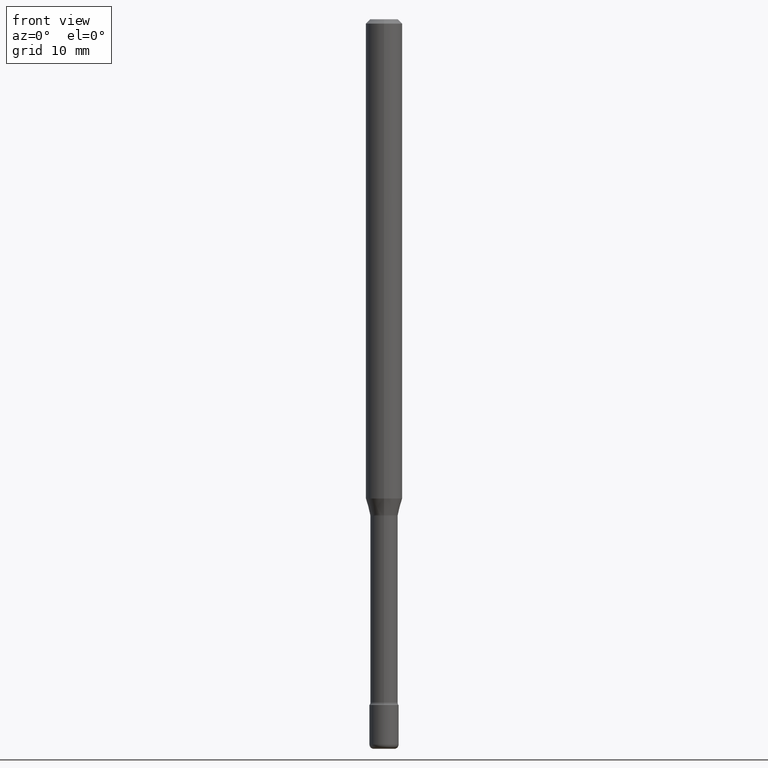
[diagram: clean part render]
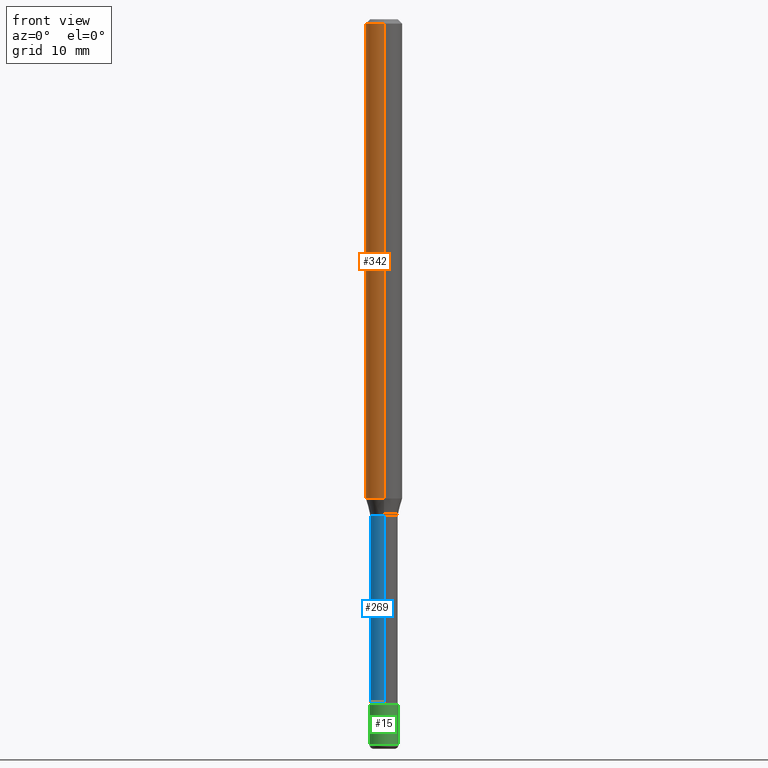
[diagram: same view with three faces highlighted in distinct colors, each labeled with its STEP entity id]
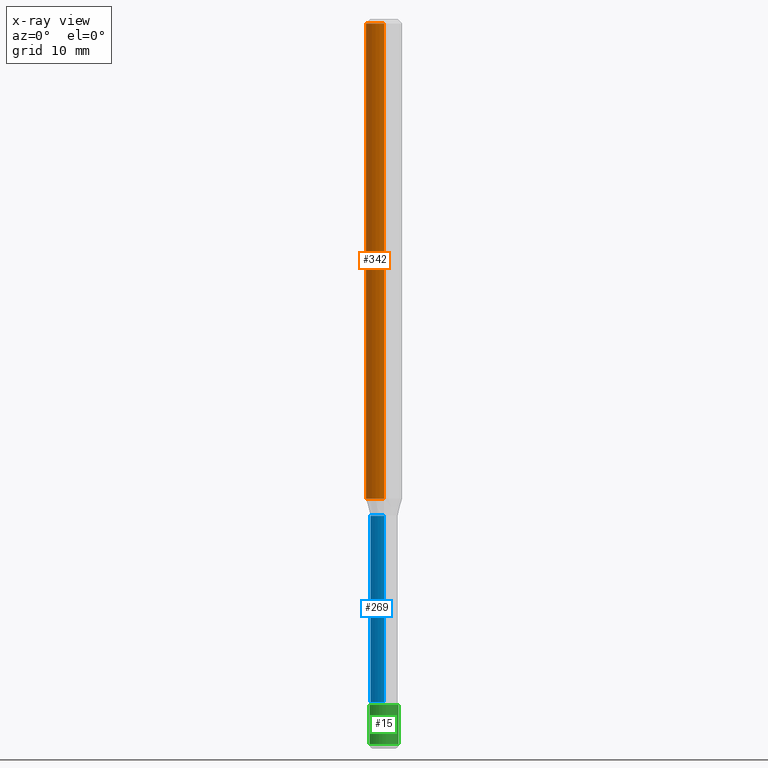
[diagram: x-ray of the same camera — body ghosted, the three highlighted faces saturated]
A machine part, front view with three faces highlighted in distinct colors.
The next image is the same camera in x-ray (body ghosted, the three faces saturated) — at least one of them is partly hidden behind the body in this view.
Their STEP definitions:

[orange] entity #342 — the highlighted cylindrical surface (edge-blend (fillet) strip) has radius 1.5875 mm, axis along (-0, 0, 1).
#27 = EDGE_LOOP ( 'NONE', ( #71, #482, #93, #513 ) ) ;
#40 = CIRCLE ( 'NONE', #338, 0.06250000000000000000 ) ;
#59 = DIRECTION ( 'NONE',  ( -6.982962677686265922E-15, -1.000000000000000000, 3.491377340152751112E-15 ) ) ;
#71 = ORIENTED_EDGE ( 'NONE', *, *, #362, .F. ) ;
#72 = FACE_OUTER_BOUND ( 'NONE', #27, .T. ) ;
#87 = VERTEX_POINT ( 'NONE', #131 ) ;
#93 = ORIENTED_EDGE ( 'NONE', *, *, #197, .T. ) ;
#109 = CARTESIAN_POINT ( 'NONE',  ( 4.440892098500625669E-16, 0.06250000000000000000, 2.598623151316991680E-16 ) ) ;
#116 = DIRECTION ( 'NONE',  ( -2.445541428082492260E-29, 3.491377340152750324E-15, 1.000000000000000000 ) ) ;
#119 = DIRECTION ( 'NONE',  ( -2.445541428082492260E-29, 3.491377340152750324E-15, 1.000000000000000000 ) ) ;
#131 = CARTESIAN_POINT ( 'NONE',  ( -4.364351673553512403E-16, -0.06250000000000568989, -1.642153212482682312 ) ) ;
#139 = VERTEX_POINT ( 'NONE', #237 ) ;
#143 = CARTESIAN_POINT ( 'NONE',  ( -4.364351673553916201E-16, -0.06250000000000000000, 6.962844826507930571E-16 ) ) ;
#152 = LINE ( 'NONE', #143, #373 ) ;
#197 = EDGE_CURVE ( 'NONE', #87, #341, #152, .T. ) ;
#198 = CARTESIAN_POINT ( 'NONE',  ( 4.440892098501030453E-16, 0.06249999999999995143, -0.01500000000000024578 ) ) ;
#237 = CARTESIAN_POINT ( 'NONE',  ( 4.440892098501028481E-16, 0.06249999999999429623, -1.642153212482682978 ) ) ;
#242 = CARTESIAN_POINT ( 'NONE',  ( -1.169113584055446105E-44, 1.669184350826100908E-30, 4.780733988912460139E-16 ) ) ;
#288 = DIRECTION ( 'NONE',  ( -2.445541428082492260E-29, 3.491377340152750324E-15, 1.000000000000000000 ) ) ;
#293 = CARTESIAN_POINT ( 'NONE',  ( 4.015953712385151571E-29, -5.733376515121082978E-15, -1.642153212482682756 ) ) ;
#309 = AXIS2_PLACEMENT_3D ( 'NONE', #293, #288, #383 ) ;
#330 = DIRECTION ( 'NONE',  ( -2.445541428082492260E-29, 3.491377340152750324E-15, 1.000000000000000000 ) ) ;
#334 = CARTESIAN_POINT ( 'NONE',  ( -4.364351673553912750E-16, -0.06250000000000005551, -0.01499999999999981036 ) ) ;
#338 = AXIS2_PLACEMENT_3D ( 'NONE', #396, #480, #386 ) ;
#339 = LINE ( 'NONE', #109, #512 ) ;
#341 = VERTEX_POINT ( 'NONE', #334 ) ;
#342 = ADVANCED_FACE ( 'NONE', ( #72 ), #458, .T. ) ;
#346 = CIRCLE ( 'NONE', #309, 0.06250000000000000000 ) ;
#362 = EDGE_CURVE ( 'NONE', #139, #389, #339, .T. ) ;
#373 = VECTOR ( 'NONE', #330, 39.37007874015748143 ) ;
#383 = DIRECTION ( 'NONE',  ( -6.982962677686265922E-15, -1.000000000000000000, 4.370956789862821150E-15 ) ) ;
#386 = DIRECTION ( 'NONE',  ( -6.982962677686265922E-15, -1.000000000000000000, 3.483106191921935554E-15 ) ) ;
#389 = VERTEX_POINT ( 'NONE', #198 ) ;
#396 = CARTESIAN_POINT ( 'NONE',  ( 3.668312142123745187E-31, -5.237066010229135864E-17, -0.01500000000000002720 ) ) ;
#430 = EDGE_CURVE ( 'NONE', #139, #87, #346, .T. ) ;
#458 = CYLINDRICAL_SURFACE ( 'NONE', #461, 0.06250000000000000000 ) ;
#461 = AXIS2_PLACEMENT_3D ( 'NONE', #242, #119, #59 ) ;
#480 = DIRECTION ( 'NONE',  ( -2.445541428082492260E-29, 3.491377340152750324E-15, 1.000000000000000000 ) ) ;
#482 = ORIENTED_EDGE ( 'NONE', *, *, #430, .T. ) ;
#512 = VECTOR ( 'NONE', #116, 39.37007874015748143 ) ;
#513 = ORIENTED_EDGE ( 'NONE', *, *, #529, .F. ) ;
#529 = EDGE_CURVE ( 'NONE', #389, #341, #40, .T. ) ;

[blue] entity #269 — the highlighted cylindrical surface (edge-blend (fillet) strip) has radius 1.1938 mm, axis along (-0, 0, 1).
#19 = VECTOR ( 'NONE', #181, 39.37007874015748143 ) ;
#20 = CARTESIAN_POINT ( 'NONE',  ( 3.446132268437060393E-16, 0.04699999999999183303, -2.341000000000000192 ) ) ;
#33 = EDGE_CURVE ( 'NONE', #138, #429, #403, .T. ) ;
#34 = ORIENTED_EDGE ( 'NONE', *, *, #142, .F. ) ;
#70 = CYLINDRICAL_SURFACE ( 'NONE', #540, 0.04700000000000000705 ) ;
#74 = EDGE_CURVE ( 'NONE', #304, #429, #364, .T. ) ;
#91 = EDGE_CURVE ( 'NONE', #336, #138, #380, .T. ) ;
#98 = DIRECTION ( 'NONE',  ( -2.445541428082492260E-29, 3.491377340152750324E-15, 1.000000000000000000 ) ) ;
#107 = CARTESIAN_POINT ( 'NONE',  ( -3.281992458511972621E-16, -0.04700000000000817413, -2.340999999999999748 ) ) ;
#138 = VERTEX_POINT ( 'NONE', #107 ) ;
#142 = EDGE_CURVE ( 'NONE', #336, #304, #412, .T. ) ;
#164 = DIRECTION ( 'NONE',  ( -2.445541428082492260E-29, 3.491377340152750324E-15, 1.000000000000000000 ) ) ;
#181 = DIRECTION ( 'NONE',  ( -2.445541428082492260E-29, 3.491377340152750324E-15, 1.000000000000000000 ) ) ;
#269 = ADVANCED_FACE ( 'NONE', ( #418 ), #70, .T. ) ;
#271 = DIRECTION ( 'NONE',  ( -6.982962677686265922E-15, -1.000000000000000000, 5.812442539711197800E-15 ) ) ;
#274 = CARTESIAN_POINT ( 'NONE',  ( 5.725012483141114982E-29, -8.173314353297587961E-15, -2.341000000000000192 ) ) ;
#291 = DIRECTION ( 'NONE',  ( -6.982962677686265922E-15, -1.000000000000000000, 3.491377340152749929E-15 ) ) ;
#304 = VERTEX_POINT ( 'NONE', #475 ) ;
#308 = AXIS2_PLACEMENT_3D ( 'NONE', #314, #98, #271 ) ;
#310 = DIRECTION ( 'NONE',  ( -6.982962677686265922E-15, -1.000000000000000000, 5.812442539711197800E-15 ) ) ;
#314 = CARTESIAN_POINT ( 'NONE',  ( 4.162249852294645006E-29, -5.942236206462443190E-15, -1.701974787463810923 ) ) ;
#322 = CARTESIAN_POINT ( 'NONE',  ( 3.339550858072470388E-16, 0.04700000000000000705, 3.139786639040668225E-16 ) ) ;
#336 = VERTEX_POINT ( 'NONE', #20 ) ;
#364 = CIRCLE ( 'NONE', #308, 0.04700000000000000705 ) ;
#375 = DIRECTION ( 'NONE',  ( -2.445541428082492260E-29, 3.491377340152750324E-15, 1.000000000000000000 ) ) ;
#380 = CIRCLE ( 'NONE', #424, 0.04700000000000000705 ) ;
#395 = CARTESIAN_POINT ( 'NONE',  ( -3.281992458512545531E-16, -0.04700000000000000705, 6.421681338784253533E-16 ) ) ;
#403 = LINE ( 'NONE', #395, #19 ) ;
#412 = LINE ( 'NONE', #322, #495 ) ;
#418 = FACE_OUTER_BOUND ( 'NONE', #435, .T. ) ;
#424 = AXIS2_PLACEMENT_3D ( 'NONE', #274, #449, #310 ) ;
#429 = VERTEX_POINT ( 'NONE', #510 ) ;
#435 = EDGE_LOOP ( 'NONE', ( #34, #528, #490, #519 ) ) ;
#449 = DIRECTION ( 'NONE',  ( -2.445541428082492260E-29, 3.491377340152750324E-15, 1.000000000000000000 ) ) ;
#475 = CARTESIAN_POINT ( 'NONE',  ( 3.339550858073043792E-16, 0.04699999999999406042, -1.701974787463811145 ) ) ;
#490 = ORIENTED_EDGE ( 'NONE', *, *, #33, .T. ) ;
#495 = VECTOR ( 'NONE', #375, 39.37007874015748143 ) ;
#510 = CARTESIAN_POINT ( 'NONE',  ( -3.281992458512129407E-16, -0.04700000000000594674, -1.701974787463810701 ) ) ;
#518 = CARTESIAN_POINT ( 'NONE',  ( -1.169113584055446105E-44, 1.669184350826100908E-30, 4.780733988912460139E-16 ) ) ;
#519 = ORIENTED_EDGE ( 'NONE', *, *, #74, .F. ) ;
#528 = ORIENTED_EDGE ( 'NONE', *, *, #91, .T. ) ;
#540 = AXIS2_PLACEMENT_3D ( 'NONE', #518, #164, #291 ) ;

[green] entity #15 — the highlighted cylindrical surface (edge-blend (fillet) strip) has radius 1.27 mm, axis along (-0, 0, 1).
#7 = DIRECTION ( 'NONE',  ( -2.445468806185136597E-29, 3.491481338843145583E-15, 1.000000000000000000 ) ) ;
#15 = ADVANCED_FACE ( 'NONE', ( #46 ), #229, .T. ) ;
#39 = ORIENTED_EDGE ( 'NONE', *, *, #253, .F. ) ;
#44 = DIRECTION ( 'NONE',  ( 1.000000000000000000, -6.982962677686265922E-15, 4.876176775795936353E-29 ) ) ;
#46 = FACE_OUTER_BOUND ( 'NONE', #564, .T. ) ;
#61 = CARTESIAN_POINT ( 'NONE',  ( 6.076989983370064174E-29, -8.676331127025216680E-15, -2.484999999999999876 ) ) ;
#122 = DIRECTION ( 'NONE',  ( -2.445468806185136877E-29, 3.491481338843145188E-15, 1.000000000000000000 ) ) ;
#135 = ORIENTED_EDGE ( 'NONE', *, *, #219, .F. ) ;
#141 = VECTOR ( 'NONE', #169, 39.37007874015748143 ) ;
#160 = VERTEX_POINT ( 'NONE', #190 ) ;
#169 = DIRECTION ( 'NONE',  ( -2.445468806185136877E-29, 3.491481338843145188E-15, 1.000000000000000000 ) ) ;
#190 = CARTESIAN_POINT ( 'NONE',  ( -0.05000000000000020400, -8.321059759145164694E-15, -2.484999999999999876 ) ) ;
#191 = AXIS2_PLACEMENT_3D ( 'NONE', #400, #7, #44 ) ;
#200 = VERTEX_POINT ( 'NONE', #506 ) ;
#213 = CIRCLE ( 'NONE', #398, 0.05000000000000000278 ) ;
#219 = EDGE_CURVE ( 'NONE', #388, #200, #213, .T. ) ;
#229 = CYLINDRICAL_SURFACE ( 'NONE', #191, 0.04999999999999999584 ) ;
#238 = DIRECTION ( 'NONE',  ( -2.445468806185136597E-29, 3.491481338843145583E-15, 1.000000000000000000 ) ) ;
#239 = CARTESIAN_POINT ( 'NONE',  ( 5.746851694535070554E-29, -8.204981146281391784E-15, -2.350000000000000089 ) ) ;
#249 = AXIS2_PLACEMENT_3D ( 'NONE', #61, #238, #413 ) ;
#250 = CARTESIAN_POINT ( 'NONE',  ( 0.04999999999999999584, -3.491481338843132862E-16, 2.438088387897967896E-30 ) ) ;
#251 = ORIENTED_EDGE ( 'NONE', *, *, #488, .T. ) ;
#253 = EDGE_CURVE ( 'NONE', #160, #388, #294, .T. ) ;
#257 = ORIENTED_EDGE ( 'NONE', *, *, #301, .T. ) ;
#275 = DIRECTION ( 'NONE',  ( -2.445468806185136597E-29, 3.491481338843145583E-15, 1.000000000000000000 ) ) ;
#294 = LINE ( 'NONE', #344, #141 ) ;
#301 = EDGE_CURVE ( 'NONE', #471, #200, #340, .T. ) ;
#317 = VECTOR ( 'NONE', #122, 39.37007874015748143 ) ;
#340 = LINE ( 'NONE', #250, #317 ) ;
#344 = CARTESIAN_POINT ( 'NONE',  ( -0.04999999999999999584, 3.552713678800500634E-16, -2.459467545127452961E-30 ) ) ;
#388 = VERTEX_POINT ( 'NONE', #554 ) ;
#398 = AXIS2_PLACEMENT_3D ( 'NONE', #239, #275, #415 ) ;
#400 = CARTESIAN_POINT ( 'NONE',  ( 0.000000000000000000, 0.000000000000000000, 0.000000000000000000 ) ) ;
#413 = DIRECTION ( 'NONE',  ( 1.000000000000000000, -6.982962677686275388E-15, 0.000000000000000000 ) ) ;
#415 = DIRECTION ( 'NONE',  ( 1.000000000000000000, -6.982962677686274599E-15, 0.000000000000000000 ) ) ;
#471 = VERTEX_POINT ( 'NONE', #557 ) ;
#488 = EDGE_CURVE ( 'NONE', #160, #471, #502, .T. ) ;
#502 = CIRCLE ( 'NONE', #249, 0.04999999999999999584 ) ;
#506 = CARTESIAN_POINT ( 'NONE',  ( 0.05000000000000000278, -8.554129280165706697E-15, -2.350000000000000089 ) ) ;
#554 = CARTESIAN_POINT ( 'NONE',  ( -0.05000000000000000278, -8.085384768773254612E-15, -2.350000000000000089 ) ) ;
#557 = CARTESIAN_POINT ( 'NONE',  ( 0.05000000000000020400, -9.025479260909531593E-15, -2.484999999999999876 ) ) ;
#564 = EDGE_LOOP ( 'NONE', ( #39, #251, #257, #135 ) ) ;